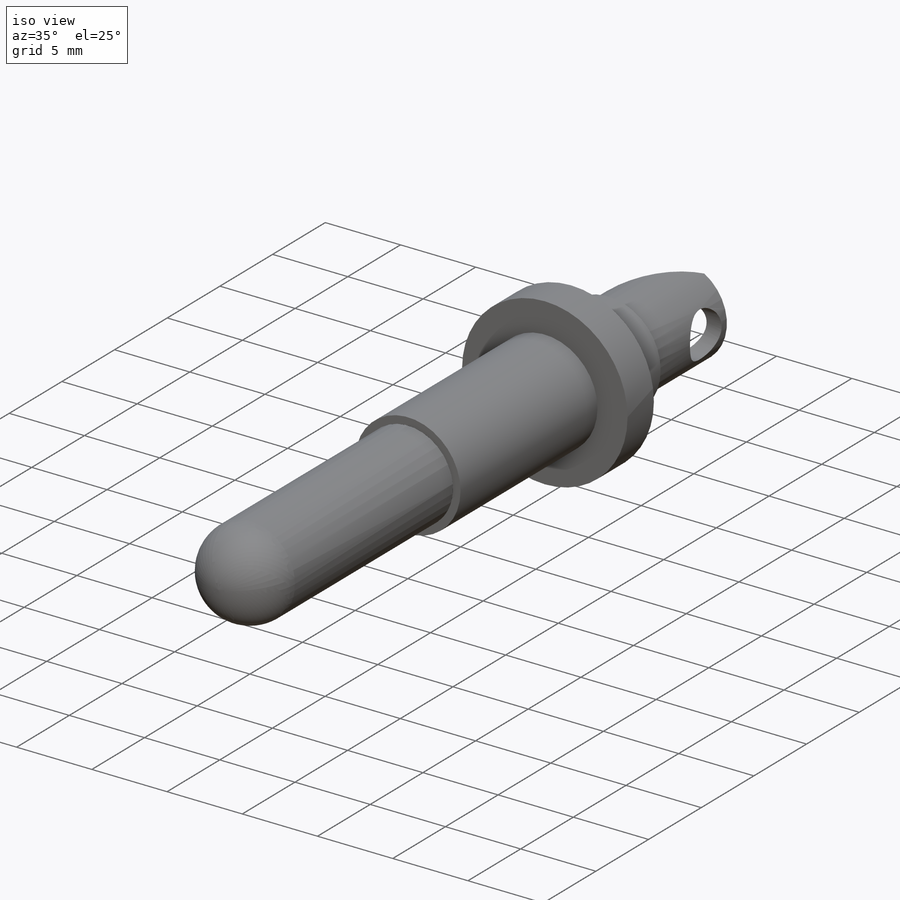
[diagram: iso view]
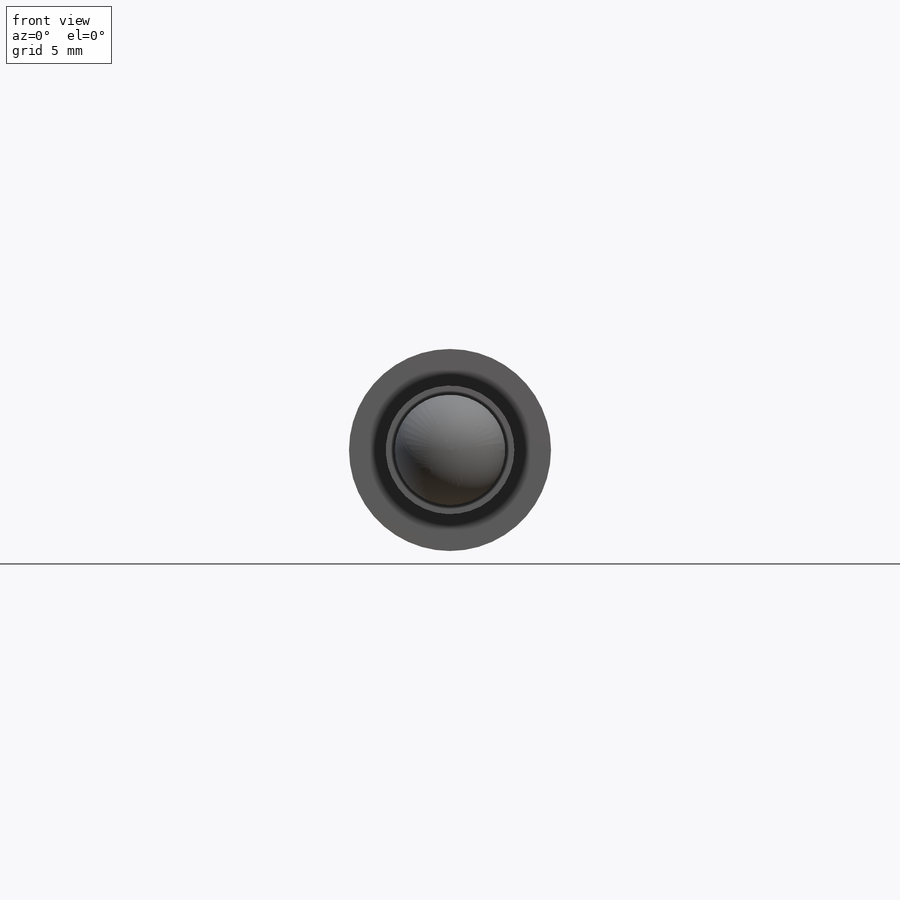
[diagram: front view]
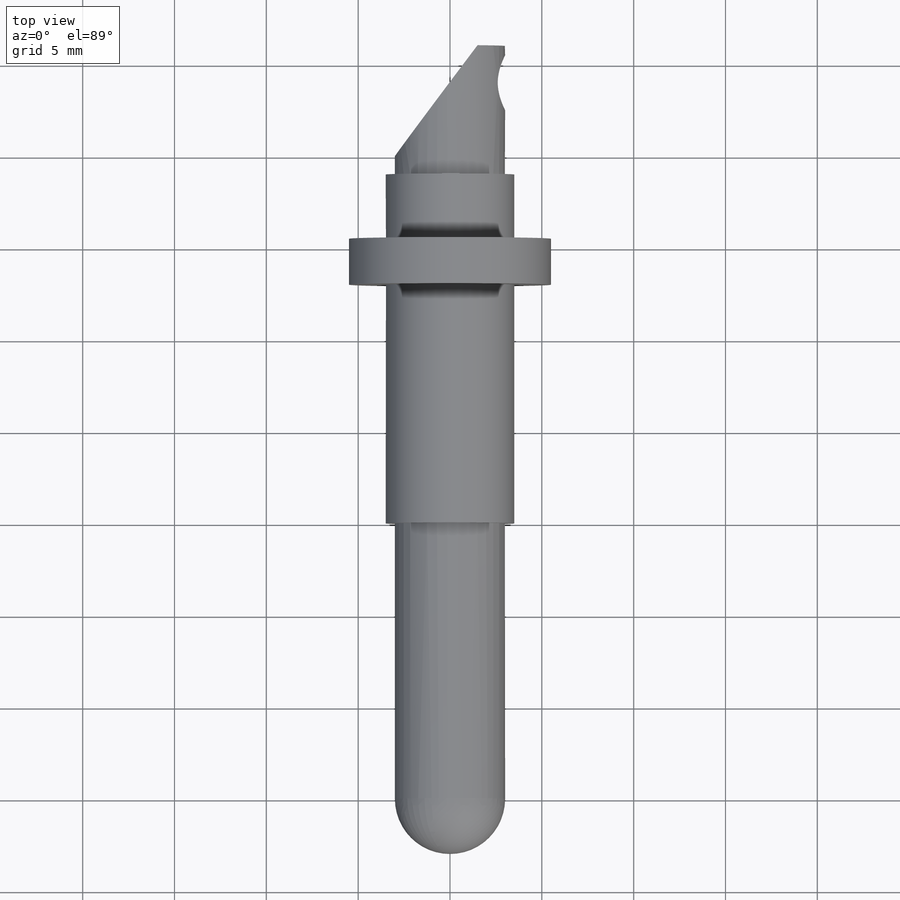
[diagram: top view]
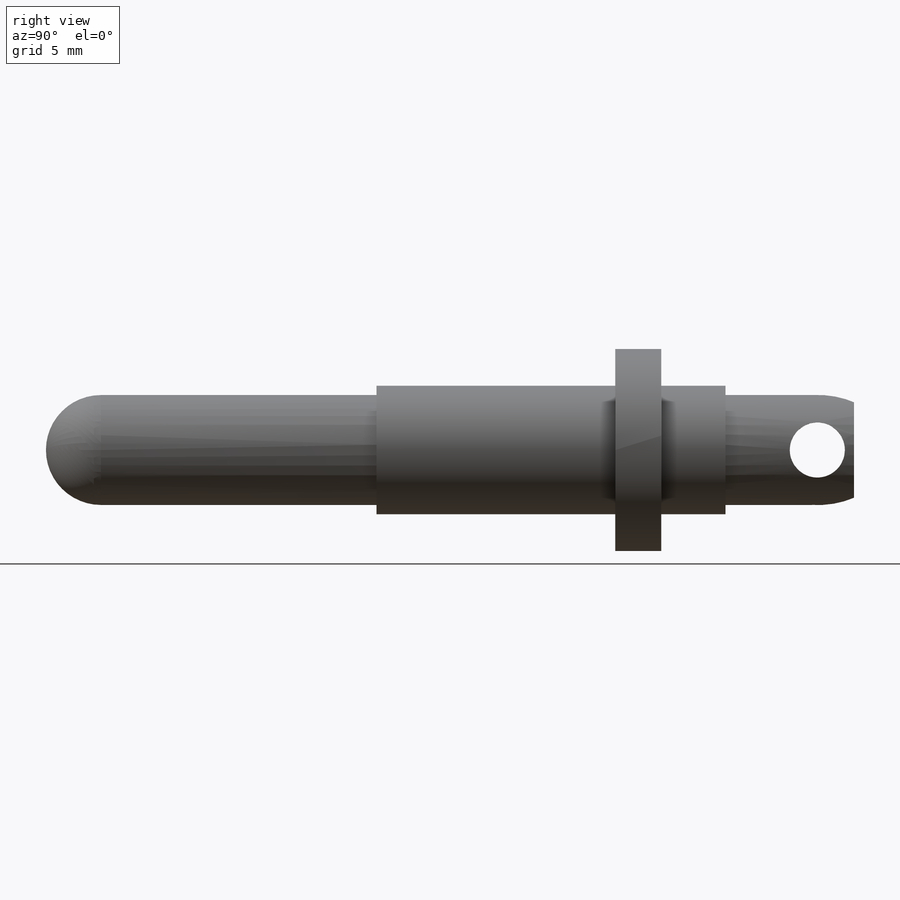
[diagram: right view]
SOLIDWORKS PART (.sldprt)
format: sldprt  version: not decoded by parser v0  size: 402,944 bytes
history: native  units: mm
features: sketch x10, plane x3, extrude x3, cut_extrude x2, hole x2, material x1, dome x1 (+9 scaffold rows collapsed)
feature tree (31):
  scaffold x9  (default folders/planes/origin — collapsed)
  material  "Латунь"
  plane  "Спереди"
  plane  "Сверху"
  plane  "Справа"
  sketch  "Эскиз1"  dims[D1=6.0mm]
  extrude  "Бобышка-Вытянуть1"  Depth=15mm
  dome  "Купол1"
  sketch  "Эскиз4"  dims[D1=7.0mm]
  extrude  "Бобышка-Вытянуть2"  Depth=26mm
  sketch  "Эскиз5"  dims[D1=6.0mm]
  cut_extrude  "Вырез-Вытянуть3"  Depth=7mm
  sketch  "Эскиз6"  dims[D1=11.0mm]
  extrude  "Бобышка-Вытянуть3"  Depth=2.5mm
  hole  "Диаметр отверстия Ø4.0 (4)1"  [1 undecoded]
  sketch  "Трехмерный эскиз1"  dims[D1=~4.257174mm]
  sketch  "Эскиз7"  dims[hole-wizard template sketch: 46 standard entries collapsed; hole parameters kept: c15.Диаметр отверстия=4.0mm c15.Глубина отверстия=7.5mm c15.D3=~14.816244mm c15.Угол заточки сверла=118.0deg]
  sketch  "Эскиз9"  dims[D1=2.0mm]
  hole  "Диаметр отверстия Ø3.0 (3)1"  [1 undecoded]
  sketch  "Трехмерный эскиз3"
  sketch  "Эскиз11"  dims[hole-wizard template sketch: 46 standard entries collapsed; hole parameters kept: c15.Диаметр отверстия=3.0mm c15.Глубина отверстия=9.0mm c15.D3=~14.816244mm c15.Угол заточки сверла=118.0deg]
  sketch  "Эскиз12"  dims[D1=1.5mm D2=6.0mm]
  cut_extrude  "Вырез-Вытянуть4"  [1 undecoded]
decode coverage: 13 of 18 modeling features carry decoded parameters
note: ~ marks probable driven/reference dimensions
note: 3 parameter values undecoded
summary: no parameter record found for 3 features
note: suppression state not decoded; provenance and decode notes live in map.json
